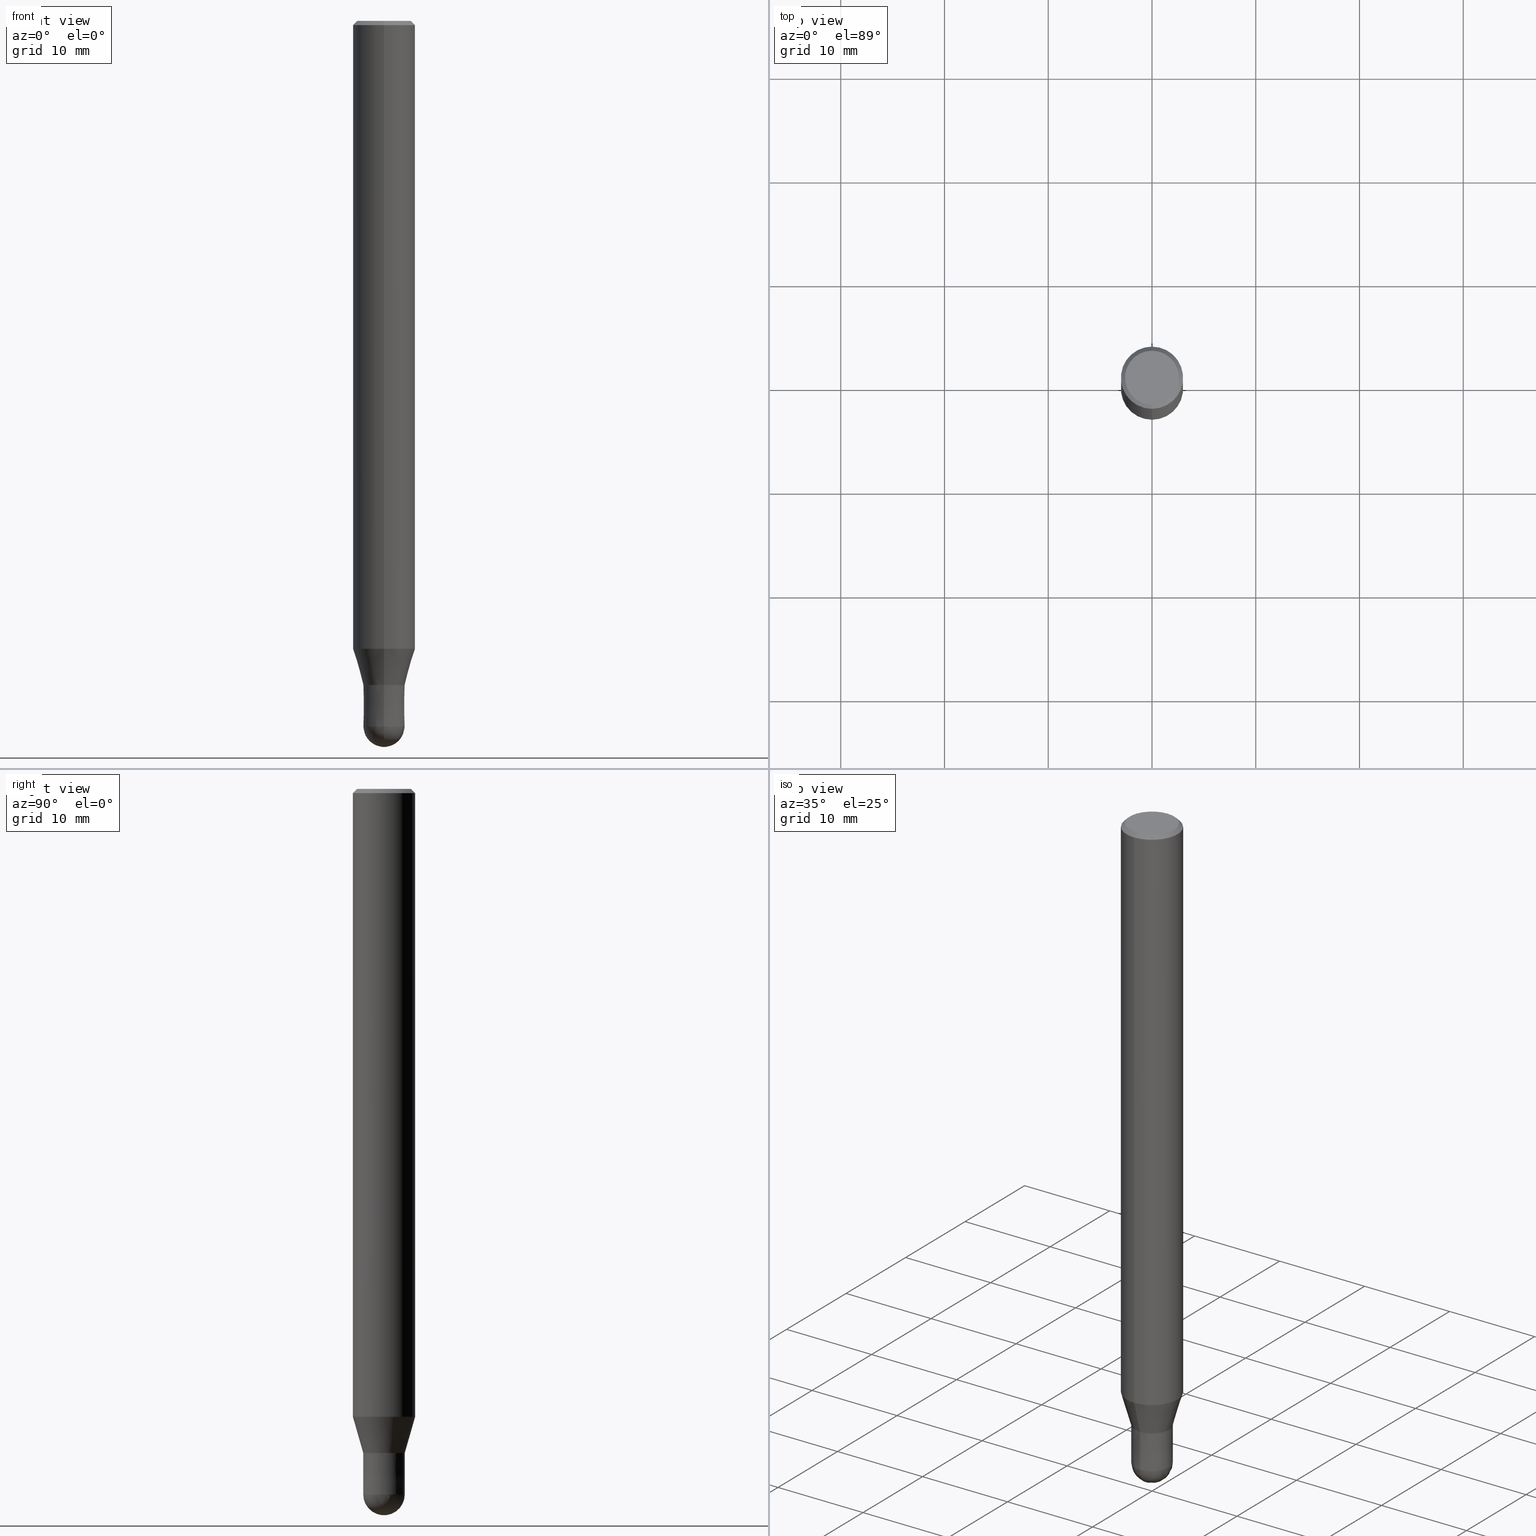
[diagram: canonical four-view strip — front | top / right | iso, engineering-drawing reading convention]
A machine part, canonical four-view strip (front | top / right | iso — engineering-drawing reading convention). The complete STEP part file that produces these views, byte-faithful:
ISO-10303-21;
HEADER;
FILE_DESCRIPTION(('no description'),'unknown implementation level');
FILE_NAME('HFB4040-0600-Huellk.stp','  ',('CIMSOURCE GmbH'),('CADClick - KiM GmbH - www.kimweb.de'),'unknown preprocess','ACIS','unknown authorization');
FILE_SCHEMA(('automotive_design'));
ENDSEC;
DATA;
#1=MECHANICAL_DESIGN_GEOMETRIC_PRESENTATION_REPRESENTATION(' ',(#14,#15,#16,#17,#18,#19,#20,#21,#22,#23,#24,#25,#26,#27,#28,#29,#30,#31,#32,#33,#34,#35,#36,#37,#38,#39,#40,#41,#42,#43,#44,#45,#46,#47,#48,#49,#50,#51,#52,#53,#54,#55,#56,#57,#58,#59,#60,#61,#62,#63,#64,#65,#66),#10);
#2=PRODUCT_DEFINITION_CONTEXT('',#67,'design');
#3=APPLICATION_PROTOCOL_DEFINITION('INTERNATIONAL STANDARD','automotive_design',1994,#67);
#4=PRODUCT_CATEGORY_RELATIONSHIP('NONE','NONE',#68,#69);
#5=SHAPE_DEFINITION_REPRESENTATION(#70,#71);
#6=PRODUCT_DEFINITION_CONTEXT('',#72,'design');
#7=APPLICATION_PROTOCOL_DEFINITION('INTERNATIONAL STANDARD','automotive_design',1994,#72);
#8=PRODUCT_CATEGORY_RELATIONSHIP('NONE','NONE',#73,#74);
#9=SHAPE_DEFINITION_REPRESENTATION(#75,#76);
#10= (GEOMETRIC_REPRESENTATION_CONTEXT(3)GLOBAL_UNCERTAINTY_ASSIGNED_CONTEXT((#79))GLOBAL_UNIT_ASSIGNED_CONTEXT((#81,#82,#83))REPRESENTATION_CONTEXT('NONE','WORKSPACE'));
#14=STYLED_ITEM('',(#85),#86);
#15=STYLED_ITEM('',(#87),#88);
#16=STYLED_ITEM('',(#89),#90);
#17=STYLED_ITEM('',(#91),#92);
#18=STYLED_ITEM('',(#93),#94);
#19=STYLED_ITEM('',(#95),#96);
#20=STYLED_ITEM('',(#97),#98);
#21=STYLED_ITEM('',(#99),#100);
#22=STYLED_ITEM('',(#101),#102);
#23=STYLED_ITEM('',(#103),#104);
#24=STYLED_ITEM('',(#105),#106);
#25=STYLED_ITEM('',(#107),#108);
#26=STYLED_ITEM('',(#109),#110);
#27=STYLED_ITEM('',(#111),#112);
#28=STYLED_ITEM('',(#113),#114);
#29=STYLED_ITEM('',(#115),#116);
#30=STYLED_ITEM('',(#117),#118);
#31=STYLED_ITEM('',(#119),#120);
#32=STYLED_ITEM('',(#121),#122);
#33=STYLED_ITEM('',(#123),#124);
#34=STYLED_ITEM('',(#125),#126);
#35=STYLED_ITEM('',(#127),#128);
#36=STYLED_ITEM('',(#129),#130);
#37=STYLED_ITEM('',(#131),#132);
#38=STYLED_ITEM('',(#133),#134);
#39=STYLED_ITEM('',(#135),#136);
#40=STYLED_ITEM('',(#137),#138);
#41=STYLED_ITEM('',(#139),#140);
#42=STYLED_ITEM('',(#141),#142);
#43=STYLED_ITEM('',(#143),#144);
#44=STYLED_ITEM('',(#145),#146);
#45=STYLED_ITEM('',(#147),#148);
#46=STYLED_ITEM('',(#149),#150);
#47=STYLED_ITEM('',(#151),#152);
#48=STYLED_ITEM('',(#153),#154);
#49=STYLED_ITEM('',(#155),#156);
#50=STYLED_ITEM('',(#157),#158);
#51=STYLED_ITEM('',(#159),#160);
#52=STYLED_ITEM('',(#161),#162);
#53=STYLED_ITEM('',(#163),#164);
#54=STYLED_ITEM('',(#165),#166);
#55=STYLED_ITEM('',(#167),#168);
#56=STYLED_ITEM('',(#169),#170);
#57=STYLED_ITEM('',(#171),#172);
#58=STYLED_ITEM('',(#173),#174);
#59=STYLED_ITEM('',(#175),#176);
#60=STYLED_ITEM('',(#177),#178);
#61=STYLED_ITEM('',(#179),#180);
#62=STYLED_ITEM('',(#181),#182);
#63=STYLED_ITEM('',(#183),#184);
#64=STYLED_ITEM('',(#185),#186);
#65=STYLED_ITEM('',(#187),#188);
#66=STYLED_ITEM('',(#189),#190);
#67=APPLICATION_CONTEXT(' ');
#68=PRODUCT_CATEGORY('part','NONE');
#69=PRODUCT_RELATED_PRODUCT_CATEGORY('detail',' ',(#191));
#70=PRODUCT_DEFINITION_SHAPE('NONE','NONE',#192);
#71=ADVANCED_BREP_SHAPE_REPRESENTATION('1',(#94,#193),#10);
#72=APPLICATION_CONTEXT(' ');
#73=PRODUCT_CATEGORY('part','NONE');
#74=PRODUCT_RELATED_PRODUCT_CATEGORY('detail',' ',(#194));
#75=PRODUCT_DEFINITION_SHAPE('NONE','NONE',#195);
#76=ADVANCED_BREP_SHAPE_REPRESENTATION('2',(#158,#196),#10);
#79=UNCERTAINTY_MEASURE_WITH_UNIT(LENGTH_MEASURE(1.0E-006),#81,'','');
#81= (CONVERSION_BASED_UNIT('MILLIMETRE',#199)LENGTH_UNIT()NAMED_UNIT(#202));
#82= (NAMED_UNIT(#204)PLANE_ANGLE_UNIT()SI_UNIT($,.RADIAN.));
#83= (NAMED_UNIT(#204)SOLID_ANGLE_UNIT()SI_UNIT($,.STERADIAN.));
#85=PRESENTATION_STYLE_ASSIGNMENT((#210));
#86=ADVANCED_FACE('',(#211),#212,.T.);
#87=PRESENTATION_STYLE_ASSIGNMENT((#213));
#88=VERTEX_POINT('',#214);
#89=PRESENTATION_STYLE_ASSIGNMENT((#215));
#90=ADVANCED_FACE('',(#216),#217,.T.);
#91=PRESENTATION_STYLE_ASSIGNMENT((#218));
#92=ADVANCED_FACE('',(#219),#220,.T.);
#93=PRESENTATION_STYLE_ASSIGNMENT((#221));
#94=MANIFOLD_SOLID_BREP('1',#222);
#95=PRESENTATION_STYLE_ASSIGNMENT((#223));
#96=VERTEX_POINT('',#224);
#97=PRESENTATION_STYLE_ASSIGNMENT((#225));
#98=EDGE_CURVE('',#118,#130,#226,.T.);
#99=PRESENTATION_STYLE_ASSIGNMENT((#227));
#100=ADVANCED_FACE('',(#228),#229,.T.);
#101=PRESENTATION_STYLE_ASSIGNMENT((#230));
#102=VERTEX_POINT('',#231);
#103=PRESENTATION_STYLE_ASSIGNMENT((#232));
#104=ADVANCED_FACE('',(#233),#234,.T.);
#105=PRESENTATION_STYLE_ASSIGNMENT((#235));
#106=EDGE_CURVE('',#166,#118,#236,.T.);
#107=PRESENTATION_STYLE_ASSIGNMENT((#237));
#108=ADVANCED_FACE('',(#238),#239,.T.);
#109=PRESENTATION_STYLE_ASSIGNMENT((#240));
#110=VERTEX_POINT('',#241);
#111=PRESENTATION_STYLE_ASSIGNMENT((#242));
#112=VERTEX_POINT('',#243);
#113=PRESENTATION_STYLE_ASSIGNMENT((#244));
#114=ADVANCED_FACE('',(#245),#246,.T.);
#115=PRESENTATION_STYLE_ASSIGNMENT((#247));
#116=EDGE_CURVE('',#88,#160,#248,.T.);
#117=PRESENTATION_STYLE_ASSIGNMENT((#249));
#118=VERTEX_POINT('',#250);
#119=PRESENTATION_STYLE_ASSIGNMENT((#251));
#120=EDGE_CURVE('',#184,#144,#252,.T.);
#121=PRESENTATION_STYLE_ASSIGNMENT((#253));
#122=EDGE_CURVE('',#184,#144,#254,.T.);
#123=PRESENTATION_STYLE_ASSIGNMENT((#255));
#124=EDGE_CURVE('',#102,#130,#256,.T.);
#125=PRESENTATION_STYLE_ASSIGNMENT((#257));
#126=EDGE_CURVE('',#172,#160,#258,.T.);
#127=PRESENTATION_STYLE_ASSIGNMENT((#259));
#128=ADVANCED_FACE('',(#260),#261,.T.);
#129=PRESENTATION_STYLE_ASSIGNMENT((#262));
#130=VERTEX_POINT('',#263);
#131=PRESENTATION_STYLE_ASSIGNMENT((#264));
#132=EDGE_CURVE('',#118,#166,#265,.T.);
#133=PRESENTATION_STYLE_ASSIGNMENT((#266));
#134=EDGE_CURVE('',#102,#166,#267,.T.);
#135=PRESENTATION_STYLE_ASSIGNMENT((#268));
#136=ADVANCED_FACE('',(#269),#270,.T.);
#137=PRESENTATION_STYLE_ASSIGNMENT((#271));
#138=EDGE_CURVE('',#112,#110,#272,.T.);
#139=PRESENTATION_STYLE_ASSIGNMENT((#273));
#140=EDGE_CURVE('',#96,#188,#274,.T.);
#141=PRESENTATION_STYLE_ASSIGNMENT((#275));
#142=ADVANCED_FACE('',(#276,#277),#278,.T.);
#143=PRESENTATION_STYLE_ASSIGNMENT((#279));
#144=VERTEX_POINT('',#280);
#145=PRESENTATION_STYLE_ASSIGNMENT((#281));
#146=EDGE_CURVE('',#144,#184,#282,.T.);
#147=PRESENTATION_STYLE_ASSIGNMENT((#283));
#148=ADVANCED_FACE('',(#284),#285,.T.);
#149=PRESENTATION_STYLE_ASSIGNMENT((#286));
#150=EDGE_CURVE('',#188,#144,#287,.T.);
#151=PRESENTATION_STYLE_ASSIGNMENT((#288));
#152=ADVANCED_FACE('',(#289),#290,.T.);
#153=PRESENTATION_STYLE_ASSIGNMENT((#291));
#154=EDGE_CURVE('',#184,#96,#292,.T.);
#155=PRESENTATION_STYLE_ASSIGNMENT((#293));
#156=VERTEX_POINT('',#294);
#157=PRESENTATION_STYLE_ASSIGNMENT((#295));
#158=MANIFOLD_SOLID_BREP('2',#296);
#159=PRESENTATION_STYLE_ASSIGNMENT((#297));
#160=VERTEX_POINT('',#298);
#161=PRESENTATION_STYLE_ASSIGNMENT((#299));
#162=EDGE_CURVE('',#110,#112,#300,.T.);
#163=PRESENTATION_STYLE_ASSIGNMENT((#301));
#164=EDGE_CURVE('',#172,#156,#302,.T.);
#165=PRESENTATION_STYLE_ASSIGNMENT((#303));
#166=VERTEX_POINT('',#304);
#167=PRESENTATION_STYLE_ASSIGNMENT((#305));
#168=EDGE_CURVE('',#88,#156,#306,.T.);
#169=PRESENTATION_STYLE_ASSIGNMENT((#307));
#170=EDGE_CURVE('',#160,#88,#308,.T.);
#171=PRESENTATION_STYLE_ASSIGNMENT((#309));
#172=VERTEX_POINT('',#310);
#173=PRESENTATION_STYLE_ASSIGNMENT((#311));
#174=ADVANCED_FACE('',(#312),#313,.T.);
#175=PRESENTATION_STYLE_ASSIGNMENT((#314));
#176=EDGE_CURVE('',#130,#112,#315,.T.);
#177=PRESENTATION_STYLE_ASSIGNMENT((#316));
#178=ADVANCED_FACE('',(#317),#318,.T.);
#179=PRESENTATION_STYLE_ASSIGNMENT((#319));
#180=EDGE_CURVE('',#188,#96,#320,.T.);
#181=PRESENTATION_STYLE_ASSIGNMENT((#321));
#182=EDGE_CURVE('',#130,#102,#322,.T.);
#183=PRESENTATION_STYLE_ASSIGNMENT((#323));
#184=VERTEX_POINT('',#324);
#185=PRESENTATION_STYLE_ASSIGNMENT((#325));
#186=EDGE_CURVE('',#110,#102,#326,.T.);
#187=PRESENTATION_STYLE_ASSIGNMENT((#327));
#188=VERTEX_POINT('',#328);
#189=PRESENTATION_STYLE_ASSIGNMENT((#329));
#190=EDGE_CURVE('',#156,#172,#330,.T.);
#191=PRODUCT('1','1','PART-1-DESC',(#331));
#192=PRODUCT_DEFINITION('NONE','NONE',#332,#2);
#193=AXIS2_PLACEMENT_3D('',#333,#334,#335);
#194=PRODUCT('2','2','PART-2-DESC',(#336));
#195=PRODUCT_DEFINITION('NONE','NONE',#337,#6);
#196=AXIS2_PLACEMENT_3D('',#338,#339,#340);
#199=LENGTH_MEASURE_WITH_UNIT(LENGTH_MEASURE(1.0),#341);
#202=DIMENSIONAL_EXPONENTS(1.0,0.0,0.0,0.0,0.0,0.0,0.0);
#204=DIMENSIONAL_EXPONENTS(0.0,0.0,0.0,0.0,0.0,0.0,0.0);
#210=SURFACE_STYLE_USAGE(.BOTH.,#342);
#211=FACE_OUTER_BOUND('',#343,.T.);
#212=SPHERICAL_SURFACE('',#344,2.0);
#213=POINT_STYLE(' ',#345,POSITIVE_LENGTH_MEASURE(1.0E-006),#346);
#214=CARTESIAN_POINT('',(0.0,2.99995,-60.513));
#215=SURFACE_STYLE_USAGE(.BOTH.,#347);
#216=FACE_OUTER_BOUND('',#348,.T.);
#217=CONICAL_SURFACE('',#349,1.99995,2.49999999947889E-005);
#218=SURFACE_STYLE_USAGE(.BOTH.,#350);
#219=FACE_OUTER_BOUND('',#351,.T.);
#220=CONICAL_SURFACE('',#352,2.49995,0.279284171542493);
#221=SURFACE_STYLE_USAGE(.BOTH.,#353);
#222=CLOSED_SHELL('',(#128,#174,#108,#142,#178,#148,#114,#92,#136));
#223=POINT_STYLE(' ',#354,POSITIVE_LENGTH_MEASURE(1.0E-006),#355);
#224=CARTESIAN_POINT('',(2.44909024700937E-016,-1.9999,-64.0));
#225=CURVE_STYLE('',#356,POSITIVE_LENGTH_MEASURE(1.0E-006),#357);
#226=LINE('',#358,#359);
#227=SURFACE_STYLE_USAGE(.BOTH.,#360);
#228=FACE_OUTER_BOUND('',#361,.T.);
#229=CONICAL_SURFACE('',#362,1.99995,2.49999999947889E-005);
#230=POINT_STYLE(' ',#363,POSITIVE_LENGTH_MEASURE(1.0E-006),#364);
#231=CARTESIAN_POINT('',(0.0,3.0,-0.399999999999999));
#232=SURFACE_STYLE_USAGE(.BOTH.,#365);
#233=FACE_OUTER_BOUND('',#366,.T.);
#234=PLANE('',#367);
#235=CURVE_STYLE('',#368,POSITIVE_LENGTH_MEASURE(1.0E-006),#369);
#236=CIRCLE('',#370,3.0);
#237=SURFACE_STYLE_USAGE(.BOTH.,#371);
#238=FACE_OUTER_BOUND('',#372,.T.);
#239=CONICAL_SURFACE('',#373,2.8,0.78539816339745);
#240=POINT_STYLE(' ',#374,POSITIVE_LENGTH_MEASURE(1.0E-006),#375);
#241=CARTESIAN_POINT('',(0.0,2.6,0.0));
#242=POINT_STYLE(' ',#376,POSITIVE_LENGTH_MEASURE(1.0E-006),#377);
#243=CARTESIAN_POINT('',(3.18397651993818E-016,-2.6,0.0));
#244=SURFACE_STYLE_USAGE(.BOTH.,#378);
#245=FACE_OUTER_BOUND('',#379,.T.);
#246=CYLINDRICAL_SURFACE('',#380,3.0);
#247=CURVE_STYLE('',#381,POSITIVE_LENGTH_MEASURE(1.0E-006),#382);
#248=CIRCLE('',#383,2.99995);
#249=POINT_STYLE(' ',#384,POSITIVE_LENGTH_MEASURE(1.0E-006),#385);
#250=CARTESIAN_POINT('',(3.67381906146713E-016,-3.0,-60.513));
#251=CURVE_STYLE('',#386,POSITIVE_LENGTH_MEASURE(1.0E-006),#387);
#252=CIRCLE('',#388,2.0);
#253=CURVE_STYLE('',#389,POSITIVE_LENGTH_MEASURE(1.0E-006),#390);
#254=CIRCLE('',#391,2.0);
#255=CURVE_STYLE('',#392,POSITIVE_LENGTH_MEASURE(1.0E-006),#393);
#256=CIRCLE('',#394,3.0);
#257=CURVE_STYLE('',#395,POSITIVE_LENGTH_MEASURE(1.0E-006),#396);
#258=LINE('',#397,#398);
#259=SURFACE_STYLE_USAGE(.BOTH.,#399);
#260=FACE_OUTER_BOUND('',#400,.T.);
#261=CONICAL_SURFACE('',#401,2.49995,0.279284171542493);
#262=POINT_STYLE(' ',#402,POSITIVE_LENGTH_MEASURE(1.0E-006),#403);
#263=CARTESIAN_POINT('',(3.67381906146713E-016,-3.0,-0.399999999999999));
#264=CURVE_STYLE('',#404,POSITIVE_LENGTH_MEASURE(1.0E-006),#405);
#265=CIRCLE('',#406,3.0);
#266=CURVE_STYLE('',#407,POSITIVE_LENGTH_MEASURE(1.0E-006),#408);
#267=LINE('',#409,#410);
#268=SURFACE_STYLE_USAGE(.BOTH.,#411);
#269=FACE_OUTER_BOUND('',#412,.T.);
#270=PLANE('',#413);
#271=CURVE_STYLE('',#414,POSITIVE_LENGTH_MEASURE(1.0E-006),#415);
#272=CIRCLE('',#416,2.6);
#273=CURVE_STYLE('',#417,POSITIVE_LENGTH_MEASURE(1.0E-006),#418);
#274=CIRCLE('',#419,1.9999);
#275=SURFACE_STYLE_USAGE(.BOTH.,#420);
#276=FACE_OUTER_BOUND('',#421,.T.);
#277=FACE_BOUND('',#422,.T.);
#278=PLANE('',#423);
#279=POINT_STYLE(' ',#424,POSITIVE_LENGTH_MEASURE(1.0E-006),#425);
#280=CARTESIAN_POINT('',(0.0,2.0,-68.0));
#281=CURVE_STYLE('',#426,POSITIVE_LENGTH_MEASURE(1.0E-006),#427);
#282=CIRCLE('',#428,2.0);
#283=SURFACE_STYLE_USAGE(.BOTH.,#429);
#284=FACE_OUTER_BOUND('',#430,.T.);
#285=CONICAL_SURFACE('',#431,2.8,0.78539816339745);
#286=CURVE_STYLE('',#432,POSITIVE_LENGTH_MEASURE(1.0E-006),#433);
#287=LINE('',#434,#435);
#288=SURFACE_STYLE_USAGE(.BOTH.,#436);
#289=FACE_OUTER_BOUND('',#437,.T.);
#290=SPHERICAL_SURFACE('',#438,2.0);
#291=CURVE_STYLE('',#439,POSITIVE_LENGTH_MEASURE(1.0E-006),#440);
#292=LINE('',#441,#442);
#293=POINT_STYLE(' ',#443,POSITIVE_LENGTH_MEASURE(1.0E-006),#444);
#294=CARTESIAN_POINT('',(0.0,1.99995,-64.0));
#295=SURFACE_STYLE_USAGE(.BOTH.,#445);
#296=CLOSED_SHELL('',(#152,#100,#104,#90,#86));
#297=POINT_STYLE(' ',#446,POSITIVE_LENGTH_MEASURE(1.0E-006),#447);
#298=CARTESIAN_POINT('',(3.67375783114944E-016,-2.99995,-60.513));
#299=CURVE_STYLE('',#448,POSITIVE_LENGTH_MEASURE(1.0E-006),#449);
#300=CIRCLE('',#450,2.6);
#301=CURVE_STYLE('',#451,POSITIVE_LENGTH_MEASURE(1.0E-006),#452);
#302=CIRCLE('',#453,1.99995);
#303=POINT_STYLE(' ',#454,POSITIVE_LENGTH_MEASURE(1.0E-006),#455);
#304=CARTESIAN_POINT('',(0.0,3.0,-60.513));
#305=CURVE_STYLE('',#456,POSITIVE_LENGTH_MEASURE(1.0E-006),#457);
#306=LINE('',#458,#459);
#307=CURVE_STYLE('',#460,POSITIVE_LENGTH_MEASURE(1.0E-006),#461);
#308=CIRCLE('',#462,2.99995);
#309=POINT_STYLE(' ',#463,POSITIVE_LENGTH_MEASURE(1.0E-006),#464);
#310=CARTESIAN_POINT('',(2.44915147732706E-016,-1.99995,-64.0));
#311=SURFACE_STYLE_USAGE(.BOTH.,#465);
#312=FACE_OUTER_BOUND('',#466,.T.);
#313=CYLINDRICAL_SURFACE('',#467,3.0);
#314=CURVE_STYLE('',#468,POSITIVE_LENGTH_MEASURE(1.0E-006),#469);
#315=LINE('',#470,#471);
#316=SURFACE_STYLE_USAGE(.BOTH.,#472);
#317=FACE_OUTER_BOUND('',#473,.T.);
#318=PLANE('',#474);
#319=CURVE_STYLE('',#475,POSITIVE_LENGTH_MEASURE(1.0E-006),#476);
#320=CIRCLE('',#477,1.9999);
#321=CURVE_STYLE('',#478,POSITIVE_LENGTH_MEASURE(1.0E-006),#479);
#322=CIRCLE('',#480,3.0);
#323=POINT_STYLE(' ',#481,POSITIVE_LENGTH_MEASURE(1.0E-006),#482);
#324=CARTESIAN_POINT('',(2.44921270764475E-016,-2.0,-68.0));
#325=CURVE_STYLE('',#483,POSITIVE_LENGTH_MEASURE(1.0E-006),#484);
#326=LINE('',#485,#486);
#327=POINT_STYLE(' ',#487,POSITIVE_LENGTH_MEASURE(1.0E-006),#488);
#328=CARTESIAN_POINT('',(0.0,1.9999,-64.0));
#329=CURVE_STYLE('',#489,POSITIVE_LENGTH_MEASURE(1.0E-006),#490);
#330=CIRCLE('',#491,1.99995);
#331=PRODUCT_CONTEXT('',#67,'mechanical');
#332=PRODUCT_DEFINITION_FORMATION_WITH_SPECIFIED_SOURCE(' ','NONE',#191,.NOT_KNOWN.);
#333=CARTESIAN_POINT('',(0.0,0.0,0.0));
#334=DIRECTION('',(0.0,0.0,1.0));
#335=DIRECTION('',(1.0,0.0,0.0));
#336=PRODUCT_CONTEXT('',#72,'mechanical');
#337=PRODUCT_DEFINITION_FORMATION_WITH_SPECIFIED_SOURCE(' ','NONE',#194,.NOT_KNOWN.);
#338=CARTESIAN_POINT('',(0.0,0.0,0.0));
#339=DIRECTION('',(0.0,0.0,1.0));
#340=DIRECTION('',(1.0,0.0,0.0));
#341= (NAMED_UNIT(#202)LENGTH_UNIT()SI_UNIT(.MILLI.,.METRE.));
#342=SURFACE_SIDE_STYLE('',(#493));
#343=EDGE_LOOP('',(#494,#495));
#344=AXIS2_PLACEMENT_3D('',#496,#497,#498);
#345=PRE_DEFINED_MARKER('');
#346=COLOUR_RGB('',0.498039215803146,0.498039215803146,0.498039215803146);
#347=SURFACE_SIDE_STYLE('',(#499));
#348=EDGE_LOOP('',(#500,#501,#502,#503));
#349=AXIS2_PLACEMENT_3D('',#504,#505,#506);
#350=SURFACE_SIDE_STYLE('',(#507));
#351=EDGE_LOOP('',(#508,#509,#510,#511));
#352=AXIS2_PLACEMENT_3D('',#512,#513,#514);
#353=SURFACE_SIDE_STYLE('',(#515));
#354=PRE_DEFINED_MARKER('');
#355=COLOUR_RGB('',0.800000011920929,0.800000011920929,0.800000011920929);
#356=DRAUGHTING_PRE_DEFINED_CURVE_FONT('continuous');
#357=COLOUR_RGB('',0.498039215803146,0.498039215803146,0.498039215803146);
#358=CARTESIAN_POINT('',(3.67381906146713E-016,-3.0,-30.4565));
#359=VECTOR('',#516,1.0);
#360=SURFACE_SIDE_STYLE('',(#517));
#361=EDGE_LOOP('',(#518,#519,#520,#521));
#362=AXIS2_PLACEMENT_3D('',#522,#523,#524);
#363=PRE_DEFINED_MARKER('');
#364=COLOUR_RGB('',0.498039215803146,0.498039215803146,0.498039215803146);
#365=SURFACE_SIDE_STYLE('',(#525));
#366=EDGE_LOOP('',(#526,#527));
#367=AXIS2_PLACEMENT_3D('',#528,#529,#530);
#368=DRAUGHTING_PRE_DEFINED_CURVE_FONT('continuous');
#369=COLOUR_RGB('',0.498039215803146,0.498039215803146,0.498039215803146);
#370=AXIS2_PLACEMENT_3D('',#531,#532,#533);
#371=SURFACE_SIDE_STYLE('',(#534));
#372=EDGE_LOOP('',(#535,#536,#537,#538));
#373=AXIS2_PLACEMENT_3D('',#539,#540,#541);
#374=PRE_DEFINED_MARKER('');
#375=COLOUR_RGB('',0.498039215803146,0.498039215803146,0.498039215803146);
#376=PRE_DEFINED_MARKER('');
#377=COLOUR_RGB('',0.498039215803146,0.498039215803146,0.498039215803146);
#378=SURFACE_SIDE_STYLE('',(#542));
#379=EDGE_LOOP('',(#543,#544,#545,#546));
#380=AXIS2_PLACEMENT_3D('',#547,#548,#549);
#381=DRAUGHTING_PRE_DEFINED_CURVE_FONT('continuous');
#382=COLOUR_RGB('',0.498039215803146,0.498039215803146,0.498039215803146);
#383=AXIS2_PLACEMENT_3D('',#550,#551,#552);
#384=PRE_DEFINED_MARKER('');
#385=COLOUR_RGB('',0.498039215803146,0.498039215803146,0.498039215803146);
#386=DRAUGHTING_PRE_DEFINED_CURVE_FONT('continuous');
#387=COLOUR_RGB('',0.800000011920929,0.800000011920929,0.800000011920929);
#388=AXIS2_PLACEMENT_3D('',#553,#554,#555);
#389=DRAUGHTING_PRE_DEFINED_CURVE_FONT('continuous');
#390=COLOUR_RGB('',0.800000011920929,0.800000011920929,0.800000011920929);
#391=AXIS2_PLACEMENT_3D('',#556,#557,#558);
#392=DRAUGHTING_PRE_DEFINED_CURVE_FONT('continuous');
#393=COLOUR_RGB('',0.498039215803146,0.498039215803146,0.498039215803146);
#394=AXIS2_PLACEMENT_3D('',#559,#560,#561);
#395=DRAUGHTING_PRE_DEFINED_CURVE_FONT('continuous');
#396=COLOUR_RGB('',0.498039215803146,0.498039215803146,0.498039215803146);
#397=CARTESIAN_POINT('',(3.06145465423825E-016,-2.49995,-62.2565));
#398=VECTOR('',#562,1.0);
#399=SURFACE_SIDE_STYLE('',(#563));
#400=EDGE_LOOP('',(#564,#565,#566,#567));
#401=AXIS2_PLACEMENT_3D('',#568,#569,#570);
#402=PRE_DEFINED_MARKER('');
#403=COLOUR_RGB('',0.498039215803146,0.498039215803146,0.498039215803146);
#404=DRAUGHTING_PRE_DEFINED_CURVE_FONT('continuous');
#405=COLOUR_RGB('',0.498039215803146,0.498039215803146,0.498039215803146);
#406=AXIS2_PLACEMENT_3D('',#571,#572,#573);
#407=DRAUGHTING_PRE_DEFINED_CURVE_FONT('continuous');
#408=COLOUR_RGB('',0.498039215803146,0.498039215803146,0.498039215803146);
#409=CARTESIAN_POINT('',(-3.67381906146713E-016,3.0,-30.4565));
#410=VECTOR('',#574,1.0);
#411=SURFACE_SIDE_STYLE('',(#575));
#412=EDGE_LOOP('',(#576,#577));
#413=AXIS2_PLACEMENT_3D('',#578,#579,#580);
#414=DRAUGHTING_PRE_DEFINED_CURVE_FONT('continuous');
#415=COLOUR_RGB('',0.498039215803146,0.498039215803146,0.498039215803146);
#416=AXIS2_PLACEMENT_3D('',#581,#582,#583);
#417=DRAUGHTING_PRE_DEFINED_CURVE_FONT('continuous');
#418=COLOUR_RGB('',0.800000011920929,0.800000011920929,0.800000011920929);
#419=AXIS2_PLACEMENT_3D('',#584,#585,#586);
#420=SURFACE_SIDE_STYLE('',(#587));
#421=EDGE_LOOP('',(#588,#589));
#422=EDGE_LOOP('',(#590,#591));
#423=AXIS2_PLACEMENT_3D('',#592,#593,#594);
#424=PRE_DEFINED_MARKER('');
#425=COLOUR_RGB('',0.800000011920929,0.800000011920929,0.800000011920929);
#426=DRAUGHTING_PRE_DEFINED_CURVE_FONT('continuous');
#427=COLOUR_RGB('',0.800000011920929,0.800000011920929,0.800000011920929);
#428=AXIS2_PLACEMENT_3D('',#595,#596,#597);
#429=SURFACE_SIDE_STYLE('',(#598));
#430=EDGE_LOOP('',(#599,#600,#601,#602));
#431=AXIS2_PLACEMENT_3D('',#603,#604,#605);
#432=DRAUGHTING_PRE_DEFINED_CURVE_FONT('continuous');
#433=COLOUR_RGB('',0.800000011920929,0.800000011920929,0.800000011920929);
#434=CARTESIAN_POINT('',(-2.44915147732706E-016,1.99995,-66.0));
#435=VECTOR('',#606,1.0);
#436=SURFACE_SIDE_STYLE('',(#607));
#437=EDGE_LOOP('',(#608,#609));
#438=AXIS2_PLACEMENT_3D('',#610,#611,#612);
#439=DRAUGHTING_PRE_DEFINED_CURVE_FONT('continuous');
#440=COLOUR_RGB('',0.800000011920929,0.800000011920929,0.800000011920929);
#441=CARTESIAN_POINT('',(2.44915147732706E-016,-1.99995,-66.0));
#442=VECTOR('',#613,1.0);
#443=PRE_DEFINED_MARKER('');
#444=COLOUR_RGB('',0.498039215803146,0.498039215803146,0.498039215803146);
#445=SURFACE_SIDE_STYLE('',(#614));
#446=PRE_DEFINED_MARKER('');
#447=COLOUR_RGB('',0.498039215803146,0.498039215803146,0.498039215803146);
#448=DRAUGHTING_PRE_DEFINED_CURVE_FONT('continuous');
#449=COLOUR_RGB('',0.498039215803146,0.498039215803146,0.498039215803146);
#450=AXIS2_PLACEMENT_3D('',#615,#616,#617);
#451=DRAUGHTING_PRE_DEFINED_CURVE_FONT('continuous');
#452=COLOUR_RGB('',0.498039215803146,0.498039215803146,0.498039215803146);
#453=AXIS2_PLACEMENT_3D('',#618,#619,#620);
#454=PRE_DEFINED_MARKER('');
#455=COLOUR_RGB('',0.498039215803146,0.498039215803146,0.498039215803146);
#456=DRAUGHTING_PRE_DEFINED_CURVE_FONT('continuous');
#457=COLOUR_RGB('',0.498039215803146,0.498039215803146,0.498039215803146);
#458=CARTESIAN_POINT('',(-3.06145465423825E-016,2.49995,-62.2565));
#459=VECTOR('',#621,1.0);
#460=DRAUGHTING_PRE_DEFINED_CURVE_FONT('continuous');
#461=COLOUR_RGB('',0.498039215803146,0.498039215803146,0.498039215803146);
#462=AXIS2_PLACEMENT_3D('',#622,#623,#624);
#463=PRE_DEFINED_MARKER('');
#464=COLOUR_RGB('',0.498039215803146,0.498039215803146,0.498039215803146);
#465=SURFACE_SIDE_STYLE('',(#625));
#466=EDGE_LOOP('',(#626,#627,#628,#629));
#467=AXIS2_PLACEMENT_3D('',#630,#631,#632);
#468=DRAUGHTING_PRE_DEFINED_CURVE_FONT('continuous');
#469=COLOUR_RGB('',0.498039215803146,0.498039215803146,0.498039215803146);
#470=CARTESIAN_POINT('',(3.42889779070266E-016,-2.8,-0.199999999999996));
#471=VECTOR('',#633,1.0);
#472=SURFACE_SIDE_STYLE('',(#634));
#473=EDGE_LOOP('',(#635,#636));
#474=AXIS2_PLACEMENT_3D('',#637,#638,#639);
#475=DRAUGHTING_PRE_DEFINED_CURVE_FONT('continuous');
#476=COLOUR_RGB('',0.800000011920929,0.800000011920929,0.800000011920929);
#477=AXIS2_PLACEMENT_3D('',#640,#641,#642);
#478=DRAUGHTING_PRE_DEFINED_CURVE_FONT('continuous');
#479=COLOUR_RGB('',0.498039215803146,0.498039215803146,0.498039215803146);
#480=AXIS2_PLACEMENT_3D('',#643,#644,#645);
#481=PRE_DEFINED_MARKER('');
#482=COLOUR_RGB('',0.800000011920929,0.800000011920929,0.800000011920929);
#483=DRAUGHTING_PRE_DEFINED_CURVE_FONT('continuous');
#484=COLOUR_RGB('',0.498039215803146,0.498039215803146,0.498039215803146);
#485=CARTESIAN_POINT('',(-3.42889779070266E-016,2.8,-0.199999999999996));
#486=VECTOR('',#646,1.0);
#487=PRE_DEFINED_MARKER('');
#488=COLOUR_RGB('',0.800000011920929,0.800000011920929,0.800000011920929);
#489=DRAUGHTING_PRE_DEFINED_CURVE_FONT('continuous');
#490=COLOUR_RGB('',0.498039215803146,0.498039215803146,0.498039215803146);
#491=AXIS2_PLACEMENT_3D('',#647,#648,#649);
#493=SURFACE_STYLE_FILL_AREA(#650);
#494=ORIENTED_EDGE('',*,*,#120,.T.);
#495=ORIENTED_EDGE('',*,*,#146,.T.);
#496=CARTESIAN_POINT('',(0.0,0.0,-68.0));
#497=DIRECTION('',(0.0,1.0,0.0));
#498=DIRECTION('',(0.0,0.0,-1.0));
#499=SURFACE_STYLE_FILL_AREA(#651);
#500=ORIENTED_EDGE('',*,*,#150,.T.);
#501=ORIENTED_EDGE('',*,*,#122,.F.);
#502=ORIENTED_EDGE('',*,*,#154,.T.);
#503=ORIENTED_EDGE('',*,*,#140,.T.);
#504=CARTESIAN_POINT('',(0.0,0.0,-66.0));
#505=DIRECTION('',(0.0,-0.0,-1.0));
#506=DIRECTION('',(0.0,1.0,0.0));
#507=SURFACE_STYLE_FILL_AREA(#652);
#508=ORIENTED_EDGE('',*,*,#168,.T.);
#509=ORIENTED_EDGE('',*,*,#164,.F.);
#510=ORIENTED_EDGE('',*,*,#126,.T.);
#511=ORIENTED_EDGE('',*,*,#170,.T.);
#512=CARTESIAN_POINT('',(0.0,0.0,-62.2565));
#513=DIRECTION('',(-0.0,-0.0,1.0));
#514=DIRECTION('',(0.0,1.0,0.0));
#515=SURFACE_STYLE_FILL_AREA(#653);
#516=DIRECTION('',(-0.0,-0.0,1.0));
#517=SURFACE_STYLE_FILL_AREA(#654);
#518=ORIENTED_EDGE('',*,*,#150,.F.);
#519=ORIENTED_EDGE('',*,*,#180,.T.);
#520=ORIENTED_EDGE('',*,*,#154,.F.);
#521=ORIENTED_EDGE('',*,*,#146,.F.);
#522=CARTESIAN_POINT('',(0.0,0.0,-66.0));
#523=DIRECTION('',(0.0,-0.0,-1.0));
#524=DIRECTION('',(0.0,1.0,0.0));
#525=SURFACE_STYLE_FILL_AREA(#655);
#526=ORIENTED_EDGE('',*,*,#180,.F.);
#527=ORIENTED_EDGE('',*,*,#140,.F.);
#528=CARTESIAN_POINT('',(0.0,0.99995,-64.0));
#529=DIRECTION('',(-0.0,0.0,1.0));
#530=DIRECTION('',(0.0,-1.0,0.0));
#531=CARTESIAN_POINT('',(0.0,0.0,-60.513));
#532=DIRECTION('',(0.0,0.0,-1.0));
#533=DIRECTION('',(0.0,1.0,0.0));
#534=SURFACE_STYLE_FILL_AREA(#656);
#535=ORIENTED_EDGE('',*,*,#186,.F.);
#536=ORIENTED_EDGE('',*,*,#162,.T.);
#537=ORIENTED_EDGE('',*,*,#176,.F.);
#538=ORIENTED_EDGE('',*,*,#124,.F.);
#539=CARTESIAN_POINT('',(0.0,0.0,-0.199999999999996));
#540=DIRECTION('',(0.0,-0.0,-1.0));
#541=DIRECTION('',(0.0,1.0,0.0));
#542=SURFACE_STYLE_FILL_AREA(#657);
#543=ORIENTED_EDGE('',*,*,#134,.T.);
#544=ORIENTED_EDGE('',*,*,#132,.F.);
#545=ORIENTED_EDGE('',*,*,#98,.T.);
#546=ORIENTED_EDGE('',*,*,#182,.T.);
#547=CARTESIAN_POINT('',(0.0,0.0,-30.4565));
#548=DIRECTION('',(-0.0,-0.0,1.0));
#549=DIRECTION('',(0.0,1.0,0.0));
#550=CARTESIAN_POINT('',(0.0,0.0,-60.513));
#551=DIRECTION('',(0.0,0.0,-1.0));
#552=DIRECTION('',(0.0,1.0,0.0));
#553=CARTESIAN_POINT('',(0.0,0.0,-68.0));
#554=DIRECTION('',(1.0,0.0,1.22460635382238E-016));
#555=DIRECTION('',(-1.22460635382238E-016,0.0,1.0));
#556=CARTESIAN_POINT('',(0.0,0.0,-68.0));
#557=DIRECTION('',(0.0,0.0,-1.0));
#558=DIRECTION('',(0.0,1.0,0.0));
#559=CARTESIAN_POINT('',(0.0,0.0,-0.399999999999999));
#560=DIRECTION('',(0.0,0.0,-1.0));
#561=DIRECTION('',(0.0,1.0,0.0));
#562=DIRECTION('',(3.3758432755158E-017,-0.275667626987133,0.961253015304131));
#563=SURFACE_STYLE_FILL_AREA(#658);
#564=ORIENTED_EDGE('',*,*,#168,.F.);
#565=ORIENTED_EDGE('',*,*,#116,.T.);
#566=ORIENTED_EDGE('',*,*,#126,.F.);
#567=ORIENTED_EDGE('',*,*,#190,.F.);
#568=CARTESIAN_POINT('',(0.0,0.0,-62.2565));
#569=DIRECTION('',(-0.0,-0.0,1.0));
#570=DIRECTION('',(0.0,1.0,0.0));
#571=CARTESIAN_POINT('',(0.0,0.0,-60.513));
#572=DIRECTION('',(0.0,0.0,-1.0));
#573=DIRECTION('',(0.0,1.0,0.0));
#574=DIRECTION('',(0.0,0.0,-1.0));
#575=SURFACE_STYLE_FILL_AREA(#659);
#576=ORIENTED_EDGE('',*,*,#190,.T.);
#577=ORIENTED_EDGE('',*,*,#164,.T.);
#578=CARTESIAN_POINT('',(0.0,0.999975,-64.0));
#579=DIRECTION('',(0.0,0.0,-1.0));
#580=DIRECTION('',(0.0,1.0,0.0));
#581=CARTESIAN_POINT('',(0.0,0.0,0.0));
#582=DIRECTION('',(0.0,0.0,-1.0));
#583=DIRECTION('',(0.0,1.0,0.0));
#584=CARTESIAN_POINT('',(0.0,0.0,-64.0));
#585=DIRECTION('',(0.0,0.0,-1.0));
#586=DIRECTION('',(0.0,1.0,0.0));
#587=SURFACE_STYLE_FILL_AREA(#660);
#588=ORIENTED_EDGE('',*,*,#106,.T.);
#589=ORIENTED_EDGE('',*,*,#132,.T.);
#590=ORIENTED_EDGE('',*,*,#116,.F.);
#591=ORIENTED_EDGE('',*,*,#170,.F.);
#592=CARTESIAN_POINT('',(0.0,1.5,-60.513));
#593=DIRECTION('',(0.0,0.0,-1.0));
#594=DIRECTION('',(0.0,1.0,0.0));
#595=CARTESIAN_POINT('',(0.0,0.0,-68.0));
#596=DIRECTION('',(0.0,0.0,-1.0));
#597=DIRECTION('',(0.0,1.0,0.0));
#598=SURFACE_STYLE_FILL_AREA(#661);
#599=ORIENTED_EDGE('',*,*,#186,.T.);
#600=ORIENTED_EDGE('',*,*,#182,.F.);
#601=ORIENTED_EDGE('',*,*,#176,.T.);
#602=ORIENTED_EDGE('',*,*,#138,.T.);
#603=CARTESIAN_POINT('',(0.0,0.0,-0.199999999999996));
#604=DIRECTION('',(0.0,-0.0,-1.0));
#605=DIRECTION('',(0.0,1.0,0.0));
#606=DIRECTION('',(-3.06151588359888E-021,2.49999999921848E-005,-0.9999999996875));
#607=SURFACE_STYLE_FILL_AREA(#662);
#608=ORIENTED_EDGE('',*,*,#120,.F.);
#609=ORIENTED_EDGE('',*,*,#122,.T.);
#610=CARTESIAN_POINT('',(0.0,0.0,-68.0));
#611=DIRECTION('',(0.0,1.0,0.0));
#612=DIRECTION('',(0.0,0.0,-1.0));
#613=DIRECTION('',(-3.06151588359888E-021,2.49999999921848E-005,0.9999999996875));
#614=SURFACE_STYLE_FILL_AREA(#663);
#615=CARTESIAN_POINT('',(0.0,0.0,0.0));
#616=DIRECTION('',(0.0,0.0,-1.0));
#617=DIRECTION('',(0.0,1.0,0.0));
#618=CARTESIAN_POINT('',(0.0,0.0,-64.0));
#619=DIRECTION('',(0.0,0.0,-1.0));
#620=DIRECTION('',(0.0,1.0,0.0));
#621=DIRECTION('',(3.3758432755158E-017,-0.275667626987133,-0.961253015304131));
#622=CARTESIAN_POINT('',(0.0,0.0,-60.513));
#623=DIRECTION('',(0.0,0.0,-1.0));
#624=DIRECTION('',(0.0,1.0,0.0));
#625=SURFACE_STYLE_FILL_AREA(#664);
#626=ORIENTED_EDGE('',*,*,#134,.F.);
#627=ORIENTED_EDGE('',*,*,#124,.T.);
#628=ORIENTED_EDGE('',*,*,#98,.F.);
#629=ORIENTED_EDGE('',*,*,#106,.F.);
#630=CARTESIAN_POINT('',(0.0,0.0,-30.4565));
#631=DIRECTION('',(-0.0,-0.0,1.0));
#632=DIRECTION('',(0.0,1.0,0.0));
#633=DIRECTION('',(-8.65927457071937E-017,0.707106781186549,0.707106781186546));
#634=SURFACE_STYLE_FILL_AREA(#665);
#635=ORIENTED_EDGE('',*,*,#162,.F.);
#636=ORIENTED_EDGE('',*,*,#138,.F.);
#637=CARTESIAN_POINT('',(0.0,1.3,0.0));
#638=DIRECTION('',(-0.0,0.0,1.0));
#639=DIRECTION('',(0.0,-1.0,0.0));
#640=CARTESIAN_POINT('',(0.0,0.0,-64.0));
#641=DIRECTION('',(0.0,0.0,-1.0));
#642=DIRECTION('',(0.0,1.0,0.0));
#643=CARTESIAN_POINT('',(0.0,0.0,-0.399999999999999));
#644=DIRECTION('',(0.0,0.0,-1.0));
#645=DIRECTION('',(0.0,1.0,0.0));
#646=DIRECTION('',(-8.65927457071937E-017,0.707106781186549,-0.707106781186546));
#647=CARTESIAN_POINT('',(0.0,0.0,-64.0));
#648=DIRECTION('',(0.0,0.0,-1.0));
#649=DIRECTION('',(0.0,1.0,0.0));
#650=FILL_AREA_STYLE('',(#666));
#651=FILL_AREA_STYLE('',(#667));
#652=FILL_AREA_STYLE('',(#668));
#653=FILL_AREA_STYLE('',(#669));
#654=FILL_AREA_STYLE('',(#670));
#655=FILL_AREA_STYLE('',(#671));
#656=FILL_AREA_STYLE('',(#672));
#657=FILL_AREA_STYLE('',(#673));
#658=FILL_AREA_STYLE('',(#674));
#659=FILL_AREA_STYLE('',(#675));
#660=FILL_AREA_STYLE('',(#676));
#661=FILL_AREA_STYLE('',(#677));
#662=FILL_AREA_STYLE('',(#678));
#663=FILL_AREA_STYLE('',(#679));
#664=FILL_AREA_STYLE('',(#680));
#665=FILL_AREA_STYLE('',(#681));
#666=FILL_AREA_STYLE_COLOUR('',#682);
#667=FILL_AREA_STYLE_COLOUR('',#683);
#668=FILL_AREA_STYLE_COLOUR('',#684);
#669=FILL_AREA_STYLE_COLOUR('',#685);
#670=FILL_AREA_STYLE_COLOUR('',#686);
#671=FILL_AREA_STYLE_COLOUR('',#687);
#672=FILL_AREA_STYLE_COLOUR('',#688);
#673=FILL_AREA_STYLE_COLOUR('',#689);
#674=FILL_AREA_STYLE_COLOUR('',#690);
#675=FILL_AREA_STYLE_COLOUR('',#691);
#676=FILL_AREA_STYLE_COLOUR('',#692);
#677=FILL_AREA_STYLE_COLOUR('',#693);
#678=FILL_AREA_STYLE_COLOUR('',#694);
#679=FILL_AREA_STYLE_COLOUR('',#695);
#680=FILL_AREA_STYLE_COLOUR('',#696);
#681=FILL_AREA_STYLE_COLOUR('',#697);
#682=COLOUR_RGB('',0.800000011920929,0.800000011920929,0.800000011920929);
#683=COLOUR_RGB('',0.800000011920929,0.800000011920929,0.800000011920929);
#684=COLOUR_RGB('',0.498039215803146,0.498039215803146,0.498039215803146);
#685=COLOUR_RGB('',0.498039215803146,0.498039215803146,0.498039215803146);
#686=COLOUR_RGB('',0.800000011920929,0.800000011920929,0.800000011920929);
#687=COLOUR_RGB('',0.800000011920929,0.800000011920929,0.800000011920929);
#688=COLOUR_RGB('',0.498039215803146,0.498039215803146,0.498039215803146);
#689=COLOUR_RGB('',0.498039215803146,0.498039215803146,0.498039215803146);
#690=COLOUR_RGB('',0.498039215803146,0.498039215803146,0.498039215803146);
#691=COLOUR_RGB('',0.498039215803146,0.498039215803146,0.498039215803146);
#692=COLOUR_RGB('',0.498039215803146,0.498039215803146,0.498039215803146);
#693=COLOUR_RGB('',0.498039215803146,0.498039215803146,0.498039215803146);
#694=COLOUR_RGB('',0.800000011920929,0.800000011920929,0.800000011920929);
#695=COLOUR_RGB('',0.800000011920929,0.800000011920929,0.800000011920929);
#696=COLOUR_RGB('',0.498039215803146,0.498039215803146,0.498039215803146);
#697=COLOUR_RGB('',0.498039215803146,0.498039215803146,0.498039215803146);
#698=AXIS2_PLACEMENT_3D('PCS',#699,#700,#701);
#699=CARTESIAN_POINT('',(0.0,0.0,0.0));
#700=DIRECTION('',(0.0,0.0,1.0));
#701=DIRECTION('',(1.0,0.0,0.0));
#702=AXIS2_PLACEMENT_3D('CIP',#703,#704,#705);
#703=CARTESIAN_POINT('',(0.0,0.0,-70.0));
#704=DIRECTION('',(0.0,0.0,1.0));
#705=DIRECTION('',(1.0,0.0,0.0));
#706=AXIS2_PLACEMENT_3D('CRP',#707,#708,#709);
#707=CARTESIAN_POINT('',(-2.0,0.0,-70.0));
#708=DIRECTION('',(0.0,0.0,1.0));
#709=DIRECTION('',(1.0,0.0,0.0));
#710=AXIS2_PLACEMENT_3D('MCS',#711,#712,#713);
#711=CARTESIAN_POINT('',(0.0,0.0,-60.513));
#712=DIRECTION('',(0.0,0.0,1.0));
#713=DIRECTION('',(1.0,0.0,0.0));
#714=CONSTRUCTIVE_GEOMETRY_REPRESENTATION_RELATIONSHIP('coordinate systems',$,#71,#715);
#715=CONSTRUCTIVE_GEOMETRY_REPRESENTATION('coordinate systems',(#698,#702,#706,#710),#10);
ENDSEC;
END-ISO-10303-21;
